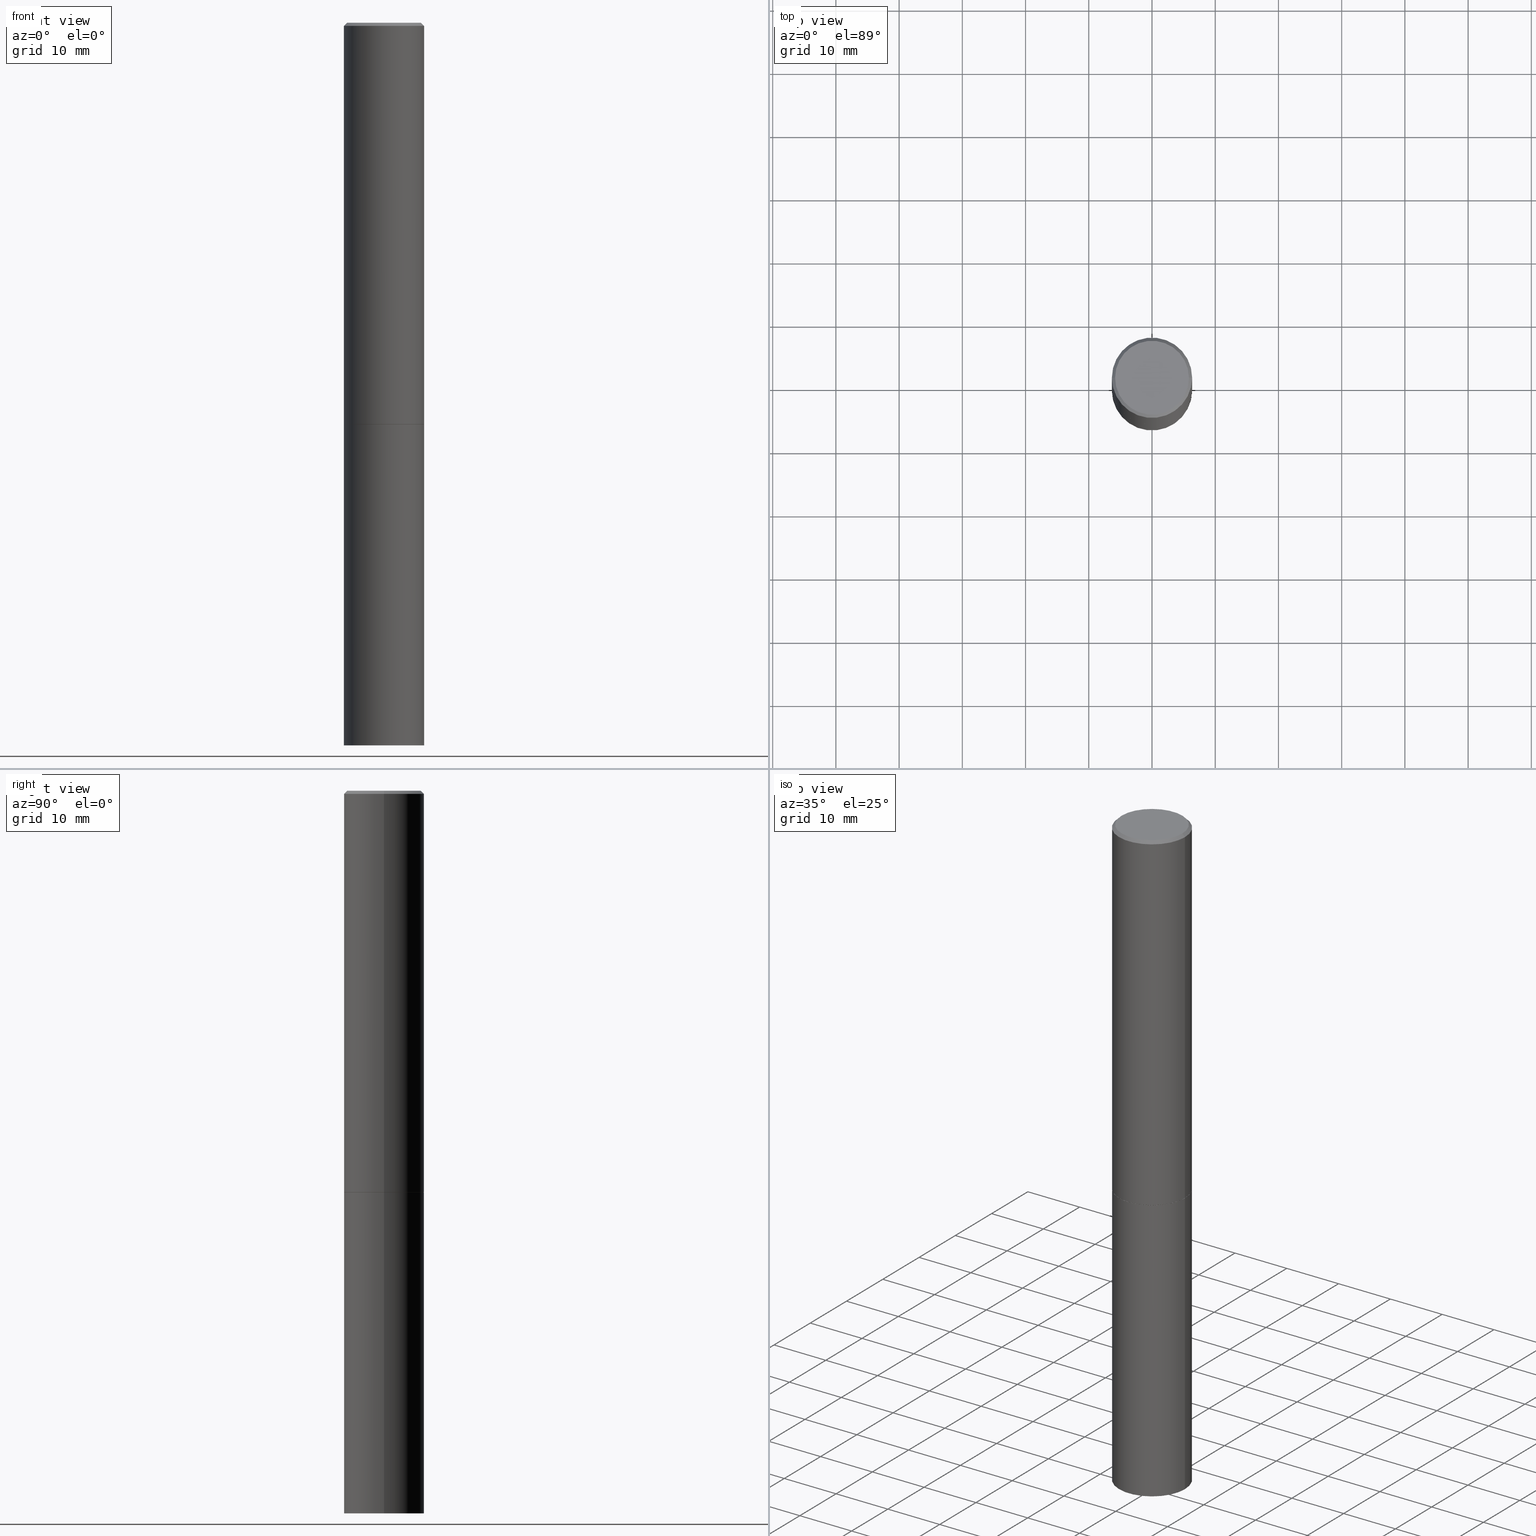
[diagram: canonical four-view strip — front | top / right | iso, engineering-drawing reading convention]
A machine part, canonical four-view strip (front | top / right | iso — engineering-drawing reading convention). The complete STEP part file that produces these views, byte-faithful:
ISO-10303-21;
HEADER;
FILE_DESCRIPTION (( 'STEP AP203' ),
    '1' );
FILE_NAME ('31766.STEP',
    '2023-03-21T20:30:50',
    ( '' ),
    ( '' ),
    'SwSTEP 2.0',
    'SolidWorks 2022',
    '' );
FILE_SCHEMA (( 'CONFIG_CONTROL_DESIGN' ));
ENDSEC;

DATA;
#1 =( LENGTH_UNIT ( ) NAMED_UNIT ( * ) SI_UNIT ( $, .METRE. ) );
#2 = AXIS2_PLACEMENT_3D ( 'NONE', #87, #148, #233 ) ;
#3 = APPROVAL_STATUS ( 'not_yet_approved' ) ;
#4 =( NAMED_UNIT ( * ) PLANE_ANGLE_UNIT ( ) SI_UNIT ( $, .RADIAN. ) );
#5 = MECHANICAL_CONTEXT ( 'NONE', #308, 'mechanical' ) ;
#6 = EDGE_LOOP ( 'NONE', ( #318, #372, #98, #14 ) ) ;
#7 = APPROVAL_ROLE ( '' ) ;
#8 = ORIENTED_EDGE ( 'NONE', *, *, #375, .T. ) ;
#9 = CIRCLE ( 'NONE', #379, 0.2299999999999996769 ) ;
#10 = DATE_AND_TIME ( #128, #94 ) ;
#11 = ORIENTED_EDGE ( 'NONE', *, *, #53, .T. ) ;
#12 = PERSON_AND_ORGANIZATION_ROLE ( 'creator' ) ;
#13 = DIRECTION ( 'NONE',  ( -2.445468806185136597E-29, 3.491481338843145583E-15, 1.000000000000000000 ) ) ;
#14 = ORIENTED_EDGE ( 'NONE', *, *, #345, .T. ) ;
#15 = ADVANCED_BREP_SHAPE_REPRESENTATION ( '31766', ( #42, #313, #323 ), #167 ) ;
#16 = ORIENTED_EDGE ( 'NONE', *, *, #78, .F. ) ;
#17 = VECTOR ( 'NONE', #261, 39.37007874015748143 ) ;
#18 = ORIENTED_EDGE ( 'NONE', *, *, #300, .F. ) ;
#19 = LINE ( 'NONE', #259, #247 ) ;
#20 = EDGE_CURVE ( 'NONE', #198, #248, #181, .T. ) ;
#21 = LINE ( 'NONE', #355, #182 ) ;
#22 = DIRECTION ( 'NONE',  ( -2.445468806185136597E-29, 3.491481338843145583E-15, 1.000000000000000000 ) ) ;
#23 = CIRCLE ( 'NONE', #213, 0.2500000000000000000 ) ;
#24 = DIRECTION ( 'NONE',  ( 1.000000000000000000, -6.982962677686266711E-15, 0.000000000000000000 ) ) ;
#25 = VERTEX_POINT ( 'NONE', #295 ) ;
#26 = CARTESIAN_POINT ( 'NONE',  ( 0.2489999999999999991, -1.046746105385174403E-14, -2.500000000000000000 ) ) ;
#27 = DIRECTION ( 'NONE',  ( -1.000000000000000000, 6.982962677686265922E-15, -4.876176775795935793E-29 ) ) ;
#28 = LINE ( 'NONE', #331, #380 ) ;
#29 = ADVANCED_FACE ( 'NONE', ( #176 ), #107, .F. ) ;
#30 = CARTESIAN_POINT ( 'NONE',  ( 6.113672015462842613E-29, -8.728703347107864943E-15, -2.500000000000000000 ) ) ;
#31 = LOCAL_TIME ( 16, 30, 50.00000000000000000, #306 ) ;
#32 = PERSON_AND_ORGANIZATION_ROLE ( 'design_owner' ) ;
#33 = PRODUCT_DEFINITION ( 'UNKNOWN', '', #347, #72 ) ;
#34 = ADVANCED_FACE ( 'NONE', ( #320 ), #297, .F. ) ;
#35 = CIRCLE ( 'NONE', #109, 0.2500000000000000000 ) ;
#36 = FACE_OUTER_BOUND ( 'NONE', #76, .T. ) ;
#37 = VERTEX_POINT ( 'NONE', #146 ) ;
#38 = ORIENTED_EDGE ( 'NONE', *, *, #210, .T. ) ;
#39 = PERSON_AND_ORGANIZATION_ROLE ( 'classification_officer' ) ;
#40 = ORIENTED_EDGE ( 'NONE', *, *, #321, .T. ) ;
#41 = VECTOR ( 'NONE', #215, 39.37007874015748143 ) ;
#42 = MANIFOLD_SOLID_BREP ( 'Body-Move/Copy2[1]', #317 ) ;
#43 = APPROVAL_ROLE ( '' ) ;
#44 = LOCAL_TIME ( 16, 30, 50.00000000000000000, #68 ) ;
#45 = APPROVAL ( #130, 'UNSPECIFIED' ) ;
#46 = ORIENTED_EDGE ( 'NONE', *, *, #75, .T. ) ;
#47 = ORIENTED_EDGE ( 'NONE', *, *, #67, .F. ) ;
#48 = DIRECTION ( 'NONE',  ( 2.438088387897960049E-29, -3.491481338843145188E-15, -1.000000000000000000 ) ) ;
#49 = ADVANCED_FACE ( 'NONE', ( #386 ), #290, .T. ) ;
#50 = DIMENSIONAL_EXPONENTS ( 1.000000000000000000, 0.000000000000000000, 0.000000000000000000, 0.000000000000000000, 0.000000000000000000, 0.000000000000000000, 0.000000000000000000 ) ;
#51 = APPROVAL_PERSON_ORGANIZATION ( #223, #384, #162 ) ;
#52 = VERTEX_POINT ( 'NONE', #111 ) ;
#53 = EDGE_CURVE ( 'NONE', #254, #25, #359, .T. ) ;
#54 = CARTESIAN_POINT ( 'NONE',  ( -0.2499999999999998057, -1.396592535537259180E-14, -4.500000000000000000 ) ) ;
#55 = CARTESIAN_POINT ( 'NONE',  ( 1.606081415867838898E-15, 0.2299999999999996769, -8.030407079339223086E-16 ) ) ;
#56 = DIRECTION ( 'NONE',  ( -2.445468806185136597E-29, 3.491481338843145583E-15, 1.000000000000000000 ) ) ;
#57 = CYLINDRICAL_SURFACE ( 'NONE', #132, 0.2499999999999998335 ) ;
#58 = CIRCLE ( 'NONE', #127, 0.2499999999999996669 ) ;
#59 = CARTESIAN_POINT ( 'NONE',  ( 1.100460962783311469E-28, -1.571166602479415690E-14, -4.500000000000000000 ) ) ;
#60 = CARTESIAN_POINT ( 'NONE',  ( 1.072508686865813231E-27, -1.531258160589950280E-13, -43.85697679533672755 ) ) ;
#61 = CARTESIAN_POINT ( 'NONE',  ( 4.890937612370287172E-31, -6.982962677686310098E-17, -0.02000000000000005593 ) ) ;
#62 = EDGE_CURVE ( 'NONE', #365, #369, #207, .T. ) ;
#63 = CARTESIAN_POINT ( 'NONE',  ( -0.2500000000000000000, 1.776356839400250465E-15, -1.229733772563726445E-29 ) ) ;
#64 = CC_DESIGN_DATE_AND_TIME_ASSIGNMENT ( #244, #196, ( #142 ) ) ;
#65 = AXIS2_PLACEMENT_3D ( 'NONE', #174, #143, #27 ) ;
#66 = AXIS2_PLACEMENT_3D ( 'NONE', #179, #56, #348 ) ;
#67 = EDGE_CURVE ( 'NONE', #37, #370, #23, .T. ) ;
#68 = COORDINATED_UNIVERSAL_TIME_OFFSET ( 5, 0, .BEHIND. ) ;
#69 = ORIENTED_EDGE ( 'NONE', *, *, #210, .F. ) ;
#70 = PERSON_AND_ORGANIZATION ( #77, #147 ) ;
#71 = ORIENTED_EDGE ( 'NONE', *, *, #195, .T. ) ;
#72 = DESIGN_CONTEXT ( 'detailed design', #124, 'design' ) ;
#73 = ORIENTED_EDGE ( 'NONE', *, *, #345, .F. ) ;
#74 = SECURITY_CLASSIFICATION_LEVEL ( 'unclassified' ) ;
#75 = EDGE_CURVE ( 'NONE', #248, #370, #330, .T. ) ;
#76 = EDGE_LOOP ( 'NONE', ( #184, #115 ) ) ;
#77 = PERSON ( 'UNSPECIFIED', 'UNSPECIFIED', 'UNSPECIFIED', ('UNSPECIFIED'), ('UNSPECIFIED'), ('UNSPECIFIED') ) ;
#78 = EDGE_CURVE ( 'NONE', #52, #161, #19, .T. ) ;
#79 = CARTESIAN_POINT ( 'NONE',  ( 0.2499999999999996669, -1.784954126219743428E-15, -0.02000000000000005593 ) ) ;
#80 = EDGE_LOOP ( 'NONE', ( #16, #276, #281, #73 ) ) ;
#81 = CIRCLE ( 'NONE', #92, 0.2500000000000000000 ) ;
#82 = AXIS2_PLACEMENT_3D ( 'NONE', #30, #258, #350 ) ;
#83 = CARTESIAN_POINT ( 'NONE',  ( 0.000000000000000000, 0.000000000000000000, 0.000000000000000000 ) ) ;
#84 = DIRECTION ( 'NONE',  ( -1.000000000000000000, 6.982962677686265922E-15, -4.876176775795935793E-29 ) ) ;
#85 = CARTESIAN_POINT ( 'NONE',  ( 4.890937612370287172E-31, -6.982962677686310098E-17, -0.02000000000000005593 ) ) ;
#86 = FACE_OUTER_BOUND ( 'NONE', #80, .T. ) ;
#87 = CARTESIAN_POINT ( 'NONE',  ( 1.072508686865813231E-27, -1.531258160589950280E-13, -43.85697679533672755 ) ) ;
#88 = ORIENTED_EDGE ( 'NONE', *, *, #271, .T. ) ;
#89 = CARTESIAN_POINT ( 'NONE',  ( 0.2500000000000000000, -1.047444401652943162E-14, -2.500000000000000000 ) ) ;
#90 = DIRECTION ( 'NONE',  ( -2.445468806185136597E-29, 3.491481338843145583E-15, 1.000000000000000000 ) ) ;
#91 = DIRECTION ( 'NONE',  ( 1.000000000000000000, -6.982962677686266711E-15, 0.000000000000000000 ) ) ;
#92 = AXIS2_PLACEMENT_3D ( 'NONE', #292, #22, #382 ) ;
#93 = FACE_OUTER_BOUND ( 'NONE', #222, .T. ) ;
#94 = LOCAL_TIME ( 16, 30, 50.00000000000000000, #282 ) ;
#95 = CALENDAR_DATE ( 2023, 21, 3 ) ;
#96 = ORIENTED_EDGE ( 'NONE', *, *, #75, .F. ) ;
#97 = AXIS2_PLACEMENT_3D ( 'NONE', #250, #199, #170 ) ;
#98 = ORIENTED_EDGE ( 'NONE', *, *, #298, .T. ) ;
#99 = CC_DESIGN_SECURITY_CLASSIFICATION ( #142, ( #347 ) ) ;
#100 = EDGE_LOOP ( 'NONE', ( #71, #163 ) ) ;
#101 = CALENDAR_DATE ( 2023, 21, 3 ) ;
#102 = VERTEX_POINT ( 'NONE', #231 ) ;
#103 = PRODUCT_RELATED_PRODUCT_CATEGORY ( 'detail', '', ( #293 ) ) ;
#104 = CC_DESIGN_PERSON_AND_ORGANIZATION_ASSIGNMENT ( #304, #32, ( #293 ) ) ;
#105 = DATE_AND_TIME ( #249, #275 ) ;
#106 = ORIENTED_EDGE ( 'NONE', *, *, #243, .F. ) ;
#107 = CONICAL_SURFACE ( 'NONE', #191, 751.2258538476803551, 1.518436449235074592 ) ;
#108 = ADVANCED_FACE ( 'NONE', ( #203 ), #344, .F. ) ;
#109 = AXIS2_PLACEMENT_3D ( 'NONE', #387, #90, #177 ) ;
#110 = DIRECTION ( 'NONE',  ( -2.445468806185136877E-29, 3.491481338843145188E-15, 1.000000000000000000 ) ) ;
#111 = CARTESIAN_POINT ( 'NONE',  ( -0.2500000000000000000, -2.621163906872689391E-15, -2.499000000000000110 ) ) ;
#112 = CC_DESIGN_DATE_AND_TIME_ASSIGNMENT ( #10, #278, ( #33 ) ) ;
#113 = CC_DESIGN_PERSON_AND_ORGANIZATION_ASSIGNMENT ( #311, #252, ( #347 ) ) ;
#114 = FACE_OUTER_BOUND ( 'NONE', #339, .T. ) ;
#115 = ORIENTED_EDGE ( 'NONE', *, *, #271, .F. ) ;
#116 = CONICAL_SURFACE ( 'NONE', #334, 0.2489999999999999991, 0.7853981633975507526 ) ;
#117 = DIRECTION ( 'NONE',  ( 0.9986295347545742773, -7.033825938271996334E-15, -0.05233595624293597981 ) ) ;
#118 = CARTESIAN_POINT ( 'NONE',  ( 0.2500000000000000000, -1.745740669421566678E-15, 1.219044193948983948E-29 ) ) ;
#119 = DIRECTION ( 'NONE',  ( -2.445468806185136597E-29, 3.491481338843145583E-15, 1.000000000000000000 ) ) ;
#120 = DIRECTION ( 'NONE',  ( -2.445468806185136597E-29, 3.491481338843145583E-15, 1.000000000000000000 ) ) ;
#121 = CARTESIAN_POINT ( 'NONE',  ( 0.000000000000000000, 0.000000000000000000, 0.000000000000000000 ) ) ;
#122 = AXIS2_PLACEMENT_3D ( 'NONE', #145, #325, #377 ) ;
#123 = EDGE_CURVE ( 'NONE', #201, #369, #378, .T. ) ;
#124 = APPLICATION_CONTEXT ( 'configuration controlled 3d designs of mechanical parts and assemblies' ) ;
#125 = DIRECTION ( 'NONE',  ( -2.445468806185136597E-29, 3.491481338843145583E-15, 1.000000000000000000 ) ) ;
#126 = CARTESIAN_POINT ( 'NONE',  ( 6.113672015462842613E-29, -8.728703347107864943E-15, -2.500000000000000000 ) ) ;
#127 = AXIS2_PLACEMENT_3D ( 'NONE', #85, #125, #24 ) ;
#128 = CALENDAR_DATE ( 2023, 21, 3 ) ;
#129 = EDGE_CURVE ( 'NONE', #52, #365, #81, .T. ) ;
#130 = APPROVAL_STATUS ( 'not_yet_approved' ) ;
#131 = VERTEX_POINT ( 'NONE', #351 ) ;
#132 = AXIS2_PLACEMENT_3D ( 'NONE', #180, #13, #342 ) ;
#133 = ORIENTED_EDGE ( 'NONE', *, *, #186, .F. ) ;
#134 = VECTOR ( 'NONE', #260, 39.37007874015748143 ) ;
#135 = PERSON_AND_ORGANIZATION ( #77, #147 ) ;
#136 = ADVANCED_FACE ( 'NONE', ( #86 ), #57, .T. ) ;
#137 = CARTESIAN_POINT ( 'NONE',  ( 4.890937612370287172E-31, -6.982962677686310098E-17, -0.02000000000000005593 ) ) ;
#138 = ORIENTED_EDGE ( 'NONE', *, *, #243, .T. ) ;
#139 = DATE_AND_TIME ( #101, #44 ) ;
#140 = EDGE_LOOP ( 'NONE', ( #251, #225, #18, #96 ) ) ;
#141 = CLOSED_SHELL ( 'NONE', ( #267, #169, #150, #153, #136, #383, #388, #108 ) ) ;
#142 = SECURITY_CLASSIFICATION ( '', '', #74 ) ;
#143 = DIRECTION ( 'NONE',  ( 2.438088387897960049E-29, -3.491481338843145188E-15, -1.000000000000000000 ) ) ;
#144 = ORIENTED_EDGE ( 'NONE', *, *, #337, .F. ) ;
#145 = CARTESIAN_POINT ( 'NONE',  ( 6.113672015462842613E-29, -8.728703347107864943E-15, -2.500000000000000000 ) ) ;
#146 = CARTESIAN_POINT ( 'NONE',  ( -0.2500000000000000000, -1.044382784655076046E-14, -2.500000000000000000 ) ) ;
#147 = ORGANIZATION ( 'UNSPECIFIED', 'UNSPECIFIED', '' ) ;
#148 = DIRECTION ( 'NONE',  ( 2.445468806185136597E-29, -3.491481338843145583E-15, -1.000000000000000000 ) ) ;
#149 = EDGE_LOOP ( 'NONE', ( #133, #173, #8, #277 ) ) ;
#150 = ADVANCED_FACE ( 'NONE', ( #368 ), #165, .T. ) ;
#151 = LINE ( 'NONE', #26, #218 ) ;
#152 = CARTESIAN_POINT ( 'NONE',  ( 0.000000000000000000, 0.000000000000000000, 0.000000000000000000 ) ) ;
#153 = ADVANCED_FACE ( 'NONE', ( #287 ), #279, .T. ) ;
#154 = DIRECTION ( 'NONE',  ( 1.000000000000000000, -6.982962677686266711E-15, 4.876176775795935793E-29 ) ) ;
#155 = DIRECTION ( 'NONE',  ( 0.000000000000000000, 0.000000000000000000, 1.000000000000000000 ) ) ;
#156 = DIRECTION ( 'NONE',  ( 1.000000000000000000, 0.000000000000000000, 0.000000000000000000 ) ) ;
#157 = APPROVAL_DATE_TIME ( #363, #45 ) ;
#158 =( CONVERSION_BASED_UNIT ( 'INCH', #160 ) LENGTH_UNIT ( ) NAMED_UNIT ( #50 ) );
#159 = CONICAL_SURFACE ( 'NONE', #2, 751.2258538476803551, 1.518436449235074592 ) ;
#160 = LENGTH_MEASURE_WITH_UNIT ( LENGTH_MEASURE( 0.02539999999999999897 ), #1 );
#161 = VERTEX_POINT ( 'NONE', #319 ) ;
#162 = APPROVAL_ROLE ( '' ) ;
#163 = ORIENTED_EDGE ( 'NONE', *, *, #186, .T. ) ;
#164 = CC_DESIGN_PERSON_AND_ORGANIZATION_ASSIGNMENT ( #70, #39, ( #142 ) ) ;
#165 = CONICAL_SURFACE ( 'NONE', #224, 0.2499999999999996669, 0.7853981633974467247 ) ;
#166 = ORIENTED_EDGE ( 'NONE', *, *, #221, .T. ) ;
#167 =( GEOMETRIC_REPRESENTATION_CONTEXT ( 3 ) GLOBAL_UNCERTAINTY_ASSIGNED_CONTEXT ( ( #371 ) ) GLOBAL_UNIT_ASSIGNED_CONTEXT ( ( #158, #4, #364 ) ) REPRESENTATION_CONTEXT ( 'NONE', 'WORKASPACE' ) );
#168 = APPROVAL_DATE_TIME ( #105, #284 ) ;
#169 = ADVANCED_FACE ( 'NONE', ( #172 ), #291, .T. ) ;
#170 = DIRECTION ( 'NONE',  ( -1.000000000000000000, 6.982962677686266711E-15, 0.000000000000000000 ) ) ;
#171 = ORIENTED_EDGE ( 'NONE', *, *, #300, .T. ) ;
#172 = FACE_OUTER_BOUND ( 'NONE', #338, .T. ) ;
#173 = ORIENTED_EDGE ( 'NONE', *, *, #123, .T. ) ;
#174 = CARTESIAN_POINT ( 'NONE',  ( 1.745740669421627617E-15, 0.2499999999999912570, -2.500000000000001332 ) ) ;
#175 = CONICAL_SURFACE ( 'NONE', #82, 0.2489999999999999991, 0.7853981633975507526 ) ;
#176 = FACE_OUTER_BOUND ( 'NONE', #228, .T. ) ;
#177 = DIRECTION ( 'NONE',  ( 1.000000000000000000, -6.982962677686266711E-15, 0.000000000000000000 ) ) ;
#178 = CARTESIAN_POINT ( 'NONE',  ( 6.113672015462842613E-29, -8.728703347107864943E-15, -2.500000000000000000 ) ) ;
#179 = CARTESIAN_POINT ( 'NONE',  ( 6.113672015462842613E-29, -8.728703347107864943E-15, -2.500000000000000000 ) ) ;
#180 = CARTESIAN_POINT ( 'NONE',  ( 0.000000000000000000, 0.000000000000000000, 0.000000000000000000 ) ) ;
#181 = CIRCLE ( 'NONE', #354, 0.2500000000000000000 ) ;
#182 = VECTOR ( 'NONE', #263, 39.37007874015748854 ) ;
#183 = CARTESIAN_POINT ( 'NONE',  ( 0.2499999999999996669, -1.784954126219743428E-15, -0.02000000000000005593 ) ) ;
#184 = ORIENTED_EDGE ( 'NONE', *, *, #53, .F. ) ;
#185 = LINE ( 'NONE', #381, #230 ) ;
#186 = EDGE_CURVE ( 'NONE', #201, #102, #188, .T. ) ;
#187 = DIRECTION ( 'NONE',  ( 1.000000000000000000, -6.982962677686270655E-15, 0.000000000000000000 ) ) ;
#188 = CIRCLE ( 'NONE', #389, 0.2299999999999996769 ) ;
#189 = DIRECTION ( 'NONE',  ( -2.445468806185136597E-29, 3.491481338843145583E-15, 1.000000000000000000 ) ) ;
#190 = APPROVAL_DATE_TIME ( #139, #384 ) ;
#191 = AXIS2_PLACEMENT_3D ( 'NONE', #60, #234, #264 ) ;
#192 = EDGE_LOOP ( 'NONE', ( #11, #40, #69, #237 ) ) ;
#193 = APPLICATION_PROTOCOL_DEFINITION ( 'international standard', 'config_control_design', 1994, #124 ) ;
#194 = ORIENTED_EDGE ( 'NONE', *, *, #20, .T. ) ;
#195 = EDGE_CURVE ( 'NONE', #102, #201, #9, .T. ) ;
#196 = DATE_TIME_ROLE ( 'classification_date' ) ;
#197 = CC_DESIGN_PERSON_AND_ORGANIZATION_ASSIGNMENT ( #227, #340, ( #347 ) ) ;
#198 = VERTEX_POINT ( 'NONE', #54 ) ;
#199 = DIRECTION ( 'NONE',  ( 2.445468806185136597E-29, -3.491481338843145583E-15, -1.000000000000000000 ) ) ;
#200 = DIRECTION ( 'NONE',  ( 2.445468806185136597E-29, -3.491481338843145583E-15, -1.000000000000000000 ) ) ;
#201 = VERTEX_POINT ( 'NONE', #241 ) ;
#202 = EDGE_CURVE ( 'NONE', #198, #37, #208, .T. ) ;
#203 = FACE_OUTER_BOUND ( 'NONE', #100, .T. ) ;
#204 = CARTESIAN_POINT ( 'NONE',  ( 0.2499999999999998335, -1.745740669421565494E-15, 1.219044193948983107E-29 ) ) ;
#205 = VECTOR ( 'NONE', #324, 39.37007874015748143 ) ;
#206 = DIRECTION ( 'NONE',  ( 1.000000000000000000, -6.982962677686266711E-15, 4.876176775795935793E-29 ) ) ;
#207 = LINE ( 'NONE', #204, #205 ) ;
#208 = LINE ( 'NONE', #63, #41 ) ;
#209 = DIRECTION ( 'NONE',  ( -2.445468806185136597E-29, 3.491481338843145583E-15, 1.000000000000000000 ) ) ;
#210 = EDGE_CURVE ( 'NONE', #365, #52, #35, .T. ) ;
#211 = DIRECTION ( 'NONE',  ( 0.7071067811866199593, -2.468850131083015945E-15, 0.7071067811864750752 ) ) ;
#212 = DIRECTION ( 'NONE',  ( 1.000000000000000000, -6.982962677686262766E-15, 0.000000000000000000 ) ) ;
#213 = AXIS2_PLACEMENT_3D ( 'NONE', #374, #240, #349 ) ;
#214 = AXIS2_PLACEMENT_3D ( 'NONE', #61, #220, #91 ) ;
#215 = DIRECTION ( 'NONE',  ( -2.445468806185136877E-29, 3.491481338843145188E-15, 1.000000000000000000 ) ) ;
#216 = CARTESIAN_POINT ( 'NONE',  ( 0.2489999999999999991, -1.046746105385174403E-14, -2.500000000000000000 ) ) ;
#217 = CARTESIAN_POINT ( 'NONE',  ( 0.000000000000000000, 0.000000000000000000, 0.000000000000000000 ) ) ;
#218 = VECTOR ( 'NONE', #211, 39.37007874015748143 ) ;
#219 = CARTESIAN_POINT ( 'NONE',  ( 6.113672015462842613E-29, -8.728703347107864943E-15, -2.500000000000000000 ) ) ;
#220 = DIRECTION ( 'NONE',  ( -2.445468806185136597E-29, 3.491481338843145583E-15, 1.000000000000000000 ) ) ;
#221 = EDGE_CURVE ( 'NONE', #254, #365, #151, .T. ) ;
#222 = EDGE_LOOP ( 'NONE', ( #226, #88, #166, #326 ) ) ;
#223 = PERSON_AND_ORGANIZATION ( #77, #147 ) ;
#224 = AXIS2_PLACEMENT_3D ( 'NONE', #137, #200, #253 ) ;
#225 = ORIENTED_EDGE ( 'NONE', *, *, #202, .T. ) ;
#226 = ORIENTED_EDGE ( 'NONE', *, *, #321, .F. ) ;
#227 = PERSON_AND_ORGANIZATION ( #77, #147 ) ;
#228 = EDGE_LOOP ( 'NONE', ( #144, #138, #246 ) ) ;
#229 = ORIENTED_EDGE ( 'NONE', *, *, #375, .F. ) ;
#230 = VECTOR ( 'NONE', #117, 39.37007874015748854 ) ;
#231 = CARTESIAN_POINT ( 'NONE',  ( -0.2299999999999996769, 1.640996229256270350E-15, -1.135408596578604159E-29 ) ) ;
#232 = ORIENTED_EDGE ( 'NONE', *, *, #20, .F. ) ;
#233 = DIRECTION ( 'NONE',  ( -1.000000000000000000, 6.982962677686266711E-15, 0.000000000000000000 ) ) ;
#234 = DIRECTION ( 'NONE',  ( 2.445468806185136597E-29, -3.491481338843145583E-15, -1.000000000000000000 ) ) ;
#235 = AXIS2_PLACEMENT_3D ( 'NONE', #178, #120, #212 ) ;
#236 = DIRECTION ( 'NONE',  ( -2.445468806185136597E-29, 3.491481338843145583E-15, 1.000000000000000000 ) ) ;
#237 = ORIENTED_EDGE ( 'NONE', *, *, #221, .F. ) ;
#238 = PRODUCT_DEFINITION_SHAPE ( 'NONE', 'NONE',  #33 ) ;
#239 = CYLINDRICAL_SURFACE ( 'NONE', #357, 0.2500000000000000000 ) ;
#240 = DIRECTION ( 'NONE',  ( -2.445468806185136597E-29, 3.491481338843145583E-15, 1.000000000000000000 ) ) ;
#241 = CARTESIAN_POINT ( 'NONE',  ( 0.2299999999999996769, -1.681434332853596842E-15, 1.149527484987431259E-29 ) ) ;
#242 = DIRECTION ( 'NONE',  ( 1.000000000000000000, -6.982962677686266711E-15, 4.876176775795935793E-29 ) ) ;
#243 = EDGE_CURVE ( 'NONE', #131, #198, #21, .T. ) ;
#244 = DATE_AND_TIME ( #307, #262 ) ;
#245 = APPROVAL_STATUS ( 'not_yet_approved' ) ;
#246 = ORIENTED_EDGE ( 'NONE', *, *, #257, .F. ) ;
#247 = VECTOR ( 'NONE', #110, 39.37007874015748143 ) ;
#248 = VERTEX_POINT ( 'NONE', #358 ) ;
#249 = CALENDAR_DATE ( 2023, 21, 3 ) ;
#250 = CARTESIAN_POINT ( 'NONE',  ( 4.890937612370287172E-31, -6.982962677686310098E-17, -0.02000000000000005593 ) ) ;
#251 = ORIENTED_EDGE ( 'NONE', *, *, #257, .T. ) ;
#252 = PERSON_AND_ORGANIZATION_ROLE ( 'creator' ) ;
#253 = DIRECTION ( 'NONE',  ( -1.000000000000000000, 6.982962677686266711E-15, 0.000000000000000000 ) ) ;
#254 = VERTEX_POINT ( 'NONE', #216 ) ;
#255 = CIRCLE ( 'NONE', #66, 0.2500000000000000000 ) ;
#256 = DIRECTION ( 'NONE',  ( -2.445468806185136597E-29, 3.491481338843145583E-15, 1.000000000000000000 ) ) ;
#257 = EDGE_CURVE ( 'NONE', #248, #198, #360, .T. ) ;
#258 = DIRECTION ( 'NONE',  ( -2.445468806185136597E-29, 3.491481338843145583E-15, 1.000000000000000000 ) ) ;
#259 = CARTESIAN_POINT ( 'NONE',  ( -0.2499999999999998335, 1.776356839400249281E-15, -1.229733772563725605E-29 ) ) ;
#260 = DIRECTION ( 'NONE',  ( -0.7071067811866199593, 7.493145998870616062E-15, 0.7071067811864750752 ) ) ;
#261 = DIRECTION ( 'NONE',  ( -2.445468806185136877E-29, 3.491481338843145188E-15, 1.000000000000000000 ) ) ;
#262 = LOCAL_TIME ( 16, 30, 50.00000000000000000, #362 ) ;
#263 = DIRECTION ( 'NONE',  ( -0.9986295347545742773, 6.790662755453670044E-15, -0.05233595624293597981 ) ) ;
#264 = DIRECTION ( 'NONE',  ( -1.000000000000000000, 6.982962677686266711E-15, 0.000000000000000000 ) ) ;
#265 = CC_DESIGN_PERSON_AND_ORGANIZATION_ASSIGNMENT ( #335, #12, ( #33 ) ) ;
#266 = FACE_OUTER_BOUND ( 'NONE', #140, .T. ) ;
#267 = ADVANCED_FACE ( 'NONE', ( #301 ), #175, .T. ) ;
#268 = DIRECTION ( 'NONE',  ( -0.7071067811865464625, 2.468850131082245228E-15, -0.7071067811865486830 ) ) ;
#269 = VECTOR ( 'NONE', #328, 39.37007874015748143 ) ;
#270 = APPROVAL_PERSON_ORGANIZATION ( #366, #45, #7 ) ;
#271 = EDGE_CURVE ( 'NONE', #25, #254, #303, .T. ) ;
#272 = PLANE ( 'NONE',  #367 ) ;
#273 = APPLICATION_PROTOCOL_DEFINITION ( 'international standard', 'config_control_design', 1994, #308 ) ;
#274 = SHAPE_DEFINITION_REPRESENTATION ( #238, #15 ) ;
#275 = LOCAL_TIME ( 16, 30, 50.00000000000000000, #315 ) ;
#276 = ORIENTED_EDGE ( 'NONE', *, *, #129, .T. ) ;
#277 = ORIENTED_EDGE ( 'NONE', *, *, #298, .F. ) ;
#278 = DATE_TIME_ROLE ( 'creation_date' ) ;
#279 = CONICAL_SURFACE ( 'NONE', #97, 0.2499999999999996669, 0.7853981633974467247 ) ;
#280 = AXIS2_PLACEMENT_3D ( 'NONE', #59, #299, #187 ) ;
#281 = ORIENTED_EDGE ( 'NONE', *, *, #62, .T. ) ;
#282 = COORDINATED_UNIVERSAL_TIME_OFFSET ( 5, 0, .BEHIND. ) ;
#283 = ORIENTED_EDGE ( 'NONE', *, *, #337, .T. ) ;
#284 = APPROVAL ( #3, 'UNSPECIFIED' ) ;
#285 = ORIENTED_EDGE ( 'NONE', *, *, #62, .F. ) ;
#286 = CIRCLE ( 'NONE', #214, 0.2499999999999996669 ) ;
#287 = FACE_OUTER_BOUND ( 'NONE', #6, .T. ) ;
#288 = ORIENTED_EDGE ( 'NONE', *, *, #202, .F. ) ;
#289 = ADVANCED_FACE ( 'NONE', ( #114 ), #159, .F. ) ;
#290 = CYLINDRICAL_SURFACE ( 'NONE', #333, 0.2500000000000000000 ) ;
#291 = CYLINDRICAL_SURFACE ( 'NONE', #322, 0.2499999999999998335 ) ;
#292 = CARTESIAN_POINT ( 'NONE',  ( 6.111226546656657010E-29, -8.725211865769021935E-15, -2.499000000000000110 ) ) ;
#293 = PRODUCT ( '31766', '31766', '', ( #5 ) ) ;
#294 = LINE ( 'NONE', #329, #134 ) ;
#295 = CARTESIAN_POINT ( 'NONE',  ( -0.2489999999999999991, -6.954153480716993873E-15, -2.500000000000000000 ) ) ;
#296 = DIRECTION ( 'NONE',  ( -2.445468806185136597E-29, 3.491481338843145583E-15, 1.000000000000000000 ) ) ;
#297 = PLANE ( 'NONE',  #65 ) ;
#298 = EDGE_CURVE ( 'NONE', #102, #161, #28, .T. ) ;
#299 = DIRECTION ( 'NONE',  ( -2.445468806185136597E-29, 3.491481338843145583E-15, 1.000000000000000000 ) ) ;
#300 = EDGE_CURVE ( 'NONE', #370, #37, #255, .T. ) ;
#301 = FACE_OUTER_BOUND ( 'NONE', #192, .T. ) ;
#302 = AXIS2_PLACEMENT_3D ( 'NONE', #55, #48, #84 ) ;
#303 = CIRCLE ( 'NONE', #122, 0.2489999999999999991 ) ;
#304 = PERSON_AND_ORGANIZATION ( #77, #147 ) ;
#305 = DIRECTION ( 'NONE',  ( 1.000000000000000000, -6.982962677686265922E-15, 4.876176775795935793E-29 ) ) ;
#306 = COORDINATED_UNIVERSAL_TIME_OFFSET ( 5, 0, .BEHIND. ) ;
#307 = CALENDAR_DATE ( 2023, 21, 3 ) ;
#308 = APPLICATION_CONTEXT ( 'configuration controlled 3d designs of mechanical parts and assemblies' ) ;
#309 = CC_DESIGN_APPROVAL ( #384, ( #347 ) ) ;
#310 = ORIENTED_EDGE ( 'NONE', *, *, #78, .T. ) ;
#311 = PERSON_AND_ORGANIZATION ( #77, #147 ) ;
#312 = EDGE_LOOP ( 'NONE', ( #171, #343 ) ) ;
#313 = MANIFOLD_SOLID_BREP ( 'Body-Move/Copy2[2]', #141 ) ;
#314 = EDGE_LOOP ( 'NONE', ( #288, #194, #46, #47 ) ) ;
#315 = COORDINATED_UNIVERSAL_TIME_OFFSET ( 5, 0, .BEHIND. ) ;
#316 = ADVANCED_FACE ( 'NONE', ( #266 ), #239, .T. ) ;
#317 = CLOSED_SHELL ( 'NONE', ( #316, #289, #29, #49, #34 ) ) ;
#318 = ORIENTED_EDGE ( 'NONE', *, *, #123, .F. ) ;
#319 = CARTESIAN_POINT ( 'NONE',  ( -0.2499999999999996669, 1.675911042644701210E-15, -0.02000000000000005593 ) ) ;
#320 = FACE_OUTER_BOUND ( 'NONE', #312, .T. ) ;
#321 = EDGE_CURVE ( 'NONE', #25, #52, #294, .T. ) ;
#322 = AXIS2_PLACEMENT_3D ( 'NONE', #121, #296, #242 ) ;
#323 = AXIS2_PLACEMENT_3D ( 'NONE', #217, #155, #156 ) ;
#324 = DIRECTION ( 'NONE',  ( -2.445468806185136877E-29, 3.491481338843145188E-15, 1.000000000000000000 ) ) ;
#325 = DIRECTION ( 'NONE',  ( -2.445468806185136597E-29, 3.491481338843145583E-15, 1.000000000000000000 ) ) ;
#326 = ORIENTED_EDGE ( 'NONE', *, *, #129, .F. ) ;
#327 = DIRECTION ( 'NONE',  ( 1.000000000000000000, -6.982962677686266711E-15, 4.876176775795935793E-29 ) ) ;
#328 = DIRECTION ( 'NONE',  ( 0.7071067811865464625, -7.319954787623252890E-15, -0.7071067811865486830 ) ) ;
#329 = CARTESIAN_POINT ( 'NONE',  ( -0.2489999999999999991, -6.959451935065215486E-15, -2.500000000000000000 ) ) ;
#330 = LINE ( 'NONE', #118, #17 ) ;
#331 = CARTESIAN_POINT ( 'NONE',  ( -0.2499999999999996669, 1.675911042644701210E-15, -0.02000000000000005593 ) ) ;
#332 = CARTESIAN_POINT ( 'NONE',  ( 0.000000000000000000, 0.000000000000000000, 0.000000000000000000 ) ) ;
#333 = AXIS2_PLACEMENT_3D ( 'NONE', #152, #256, #346 ) ;
#334 = AXIS2_PLACEMENT_3D ( 'NONE', #219, #189, #361 ) ;
#335 = PERSON_AND_ORGANIZATION ( #77, #147 ) ;
#336 = DIRECTION ( 'NONE',  ( -2.438088387897960049E-29, 3.491481338843145188E-15, 1.000000000000000000 ) ) ;
#337 = EDGE_CURVE ( 'NONE', #131, #248, #185, .T. ) ;
#338 = EDGE_LOOP ( 'NONE', ( #38, #310, #229, #285 ) ) ;
#339 = EDGE_LOOP ( 'NONE', ( #106, #283, #232 ) ) ;
#340 = PERSON_AND_ORGANIZATION_ROLE ( 'design_supplier' ) ;
#341 = APPROVAL_PERSON_ORGANIZATION ( #135, #284, #43 ) ;
#342 = DIRECTION ( 'NONE',  ( 1.000000000000000000, -6.982962677686266711E-15, 4.876176775795935793E-29 ) ) ;
#343 = ORIENTED_EDGE ( 'NONE', *, *, #67, .T. ) ;
#344 = PLANE ( 'NONE',  #302 ) ;
#345 = EDGE_CURVE ( 'NONE', #161, #369, #58, .T. ) ;
#346 = DIRECTION ( 'NONE',  ( 1.000000000000000000, -6.982962677686266711E-15, 4.876176775795935793E-29 ) ) ;
#347 = PRODUCT_DEFINITION_FORMATION_WITH_SPECIFIED_SOURCE ( 'ANY', '', #293, .NOT_KNOWN. ) ;
#348 = DIRECTION ( 'NONE',  ( 1.000000000000000000, -6.982962677686266711E-15, 0.000000000000000000 ) ) ;
#349 = DIRECTION ( 'NONE',  ( 1.000000000000000000, -6.982962677686266711E-15, 0.000000000000000000 ) ) ;
#350 = DIRECTION ( 'NONE',  ( 1.000000000000000000, -6.982962677686262766E-15, 0.000000000000000000 ) ) ;
#351 = CARTESIAN_POINT ( 'NONE',  ( 1.097264008086042988E-28, -1.566581936716342139E-14, -4.486898055179241673 ) ) ;
#352 = CARTESIAN_POINT ( 'NONE',  ( 0.2500000000000000000, -1.047095253519058861E-14, -2.499000000000000110 ) ) ;
#353 = DIRECTION ( 'NONE',  ( 1.000000000000000000, -6.982962677686270655E-15, 0.000000000000000000 ) ) ;
#354 = AXIS2_PLACEMENT_3D ( 'NONE', #376, #209, #353 ) ;
#355 = CARTESIAN_POINT ( 'NONE',  ( -1.014617863962026419E-19, -1.566592082894992695E-14, -4.486898055179241673 ) ) ;
#356 = CC_DESIGN_APPROVAL ( #45, ( #142 ) ) ;
#357 = AXIS2_PLACEMENT_3D ( 'NONE', #83, #390, #206 ) ;
#358 = CARTESIAN_POINT ( 'NONE',  ( 0.2499999999999998057, -1.742679052423703663E-14, -4.500000000000000000 ) ) ;
#359 = CIRCLE ( 'NONE', #235, 0.2489999999999999991 ) ;
#360 = CIRCLE ( 'NONE', #280, 0.2500000000000000000 ) ;
#361 = DIRECTION ( 'NONE',  ( 1.000000000000000000, -6.982962677686262766E-15, 0.000000000000000000 ) ) ;
#362 = COORDINATED_UNIVERSAL_TIME_OFFSET ( 5, 0, .BEHIND. ) ;
#363 = DATE_AND_TIME ( #95, #31 ) ;
#364 =( NAMED_UNIT ( * ) SI_UNIT ( $, .STERADIAN. ) SOLID_ANGLE_UNIT ( ) );
#365 = VERTEX_POINT ( 'NONE', #352 ) ;
#366 = PERSON_AND_ORGANIZATION ( #77, #147 ) ;
#367 = AXIS2_PLACEMENT_3D ( 'NONE', #126, #336, #305 ) ;
#368 = FACE_OUTER_BOUND ( 'NONE', #149, .T. ) ;
#369 = VERTEX_POINT ( 'NONE', #183 ) ;
#370 = VERTEX_POINT ( 'NONE', #89 ) ;
#371 = UNCERTAINTY_MEASURE_WITH_UNIT (LENGTH_MEASURE( 1.000000000000000082E-05 ), #158, 'distance_accuracy_value', 'NONE');
#372 = ORIENTED_EDGE ( 'NONE', *, *, #195, .F. ) ;
#373 = CC_DESIGN_APPROVAL ( #284, ( #33 ) ) ;
#374 = CARTESIAN_POINT ( 'NONE',  ( 6.113672015462842613E-29, -8.728703347107864943E-15, -2.500000000000000000 ) ) ;
#375 = EDGE_CURVE ( 'NONE', #369, #161, #286, .T. ) ;
#376 = CARTESIAN_POINT ( 'NONE',  ( 1.100460962783311469E-28, -1.571166602479415690E-14, -4.500000000000000000 ) ) ;
#377 = DIRECTION ( 'NONE',  ( 1.000000000000000000, -6.982962677686262766E-15, 0.000000000000000000 ) ) ;
#378 = LINE ( 'NONE', #79, #269 ) ;
#379 = AXIS2_PLACEMENT_3D ( 'NONE', #332, #119, #154 ) ;
#380 = VECTOR ( 'NONE', #268, 39.37007874015748143 ) ;
#381 = CARTESIAN_POINT ( 'NONE',  ( 1.014617866156540054E-19, -1.566592082894992695E-14, -4.486898055179241673 ) ) ;
#382 = DIRECTION ( 'NONE',  ( 1.000000000000000000, -6.982962677686266711E-15, 0.000000000000000000 ) ) ;
#383 = ADVANCED_FACE ( 'NONE', ( #93 ), #116, .T. ) ;
#384 = APPROVAL ( #245, 'UNSPECIFIED' ) ;
#385 = CARTESIAN_POINT ( 'NONE',  ( 0.000000000000000000, 0.000000000000000000, 0.000000000000000000 ) ) ;
#386 = FACE_OUTER_BOUND ( 'NONE', #314, .T. ) ;
#387 = CARTESIAN_POINT ( 'NONE',  ( 6.111226546656657010E-29, -8.725211865769021935E-15, -2.499000000000000110 ) ) ;
#388 = ADVANCED_FACE ( 'NONE', ( #36 ), #272, .F. ) ;
#389 = AXIS2_PLACEMENT_3D ( 'NONE', #385, #236, #327 ) ;
#390 = DIRECTION ( 'NONE',  ( -2.445468806185136597E-29, 3.491481338843145583E-15, 1.000000000000000000 ) ) ;
ENDSEC;
END-ISO-10303-21;
